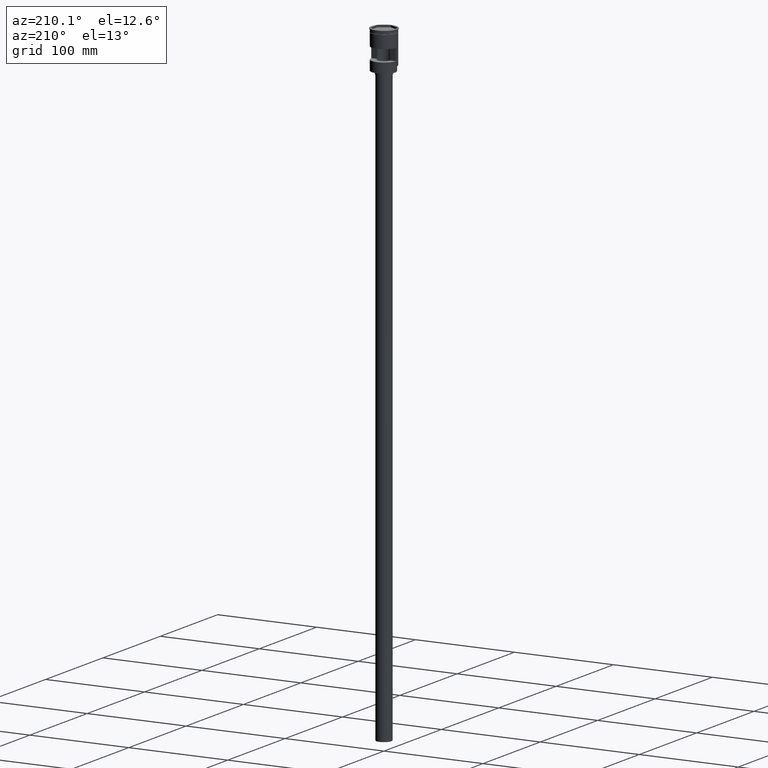
[diagram: clean part render]
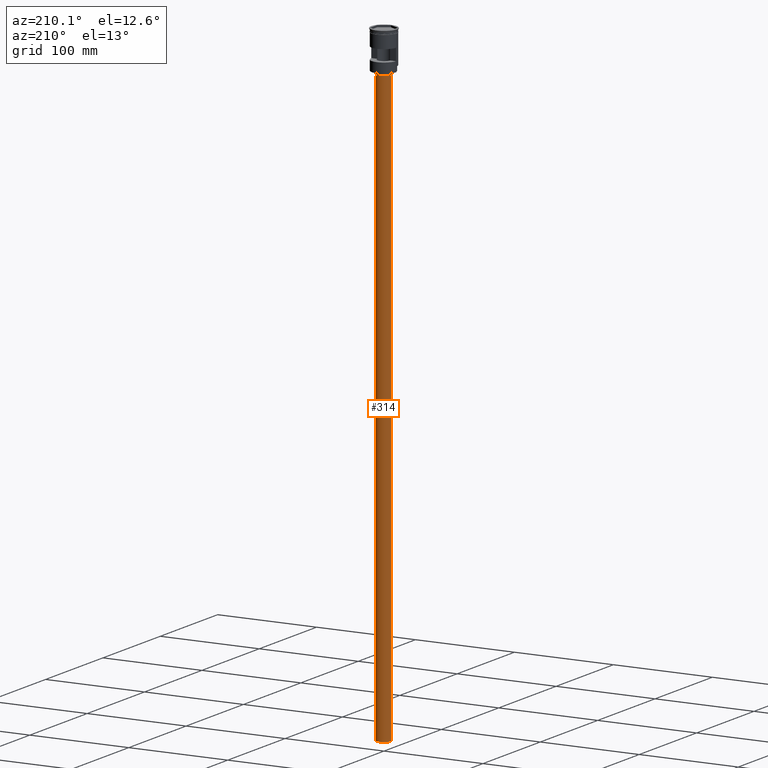
[diagram: same view with one face highlighted and labeled with its STEP entity id]
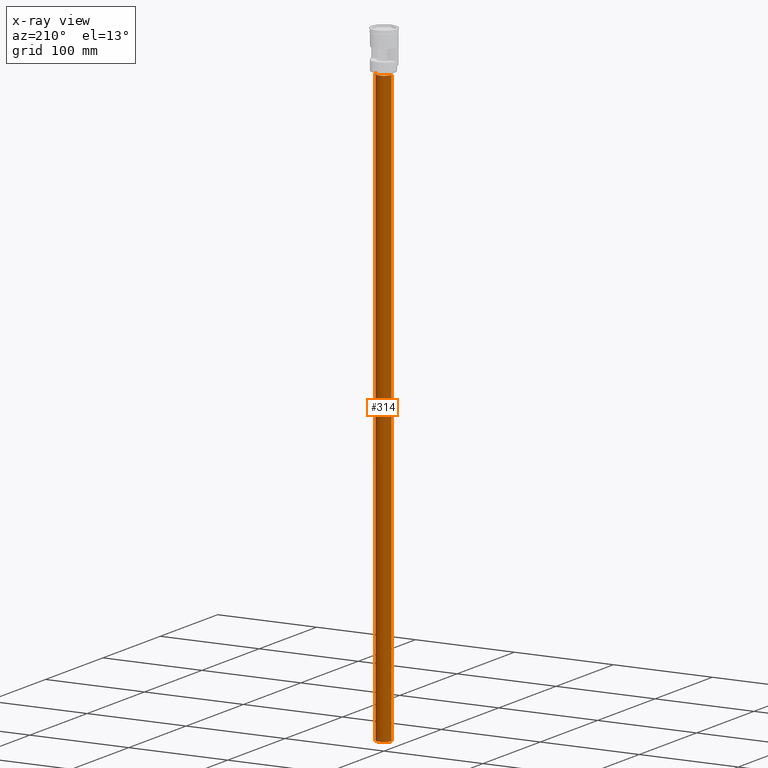
[diagram: x-ray of the same camera — body ghosted, the highlighted face saturated]
A machine part, auxiliary view. The second image highlights one B-rep face of the part: STEP entity #314.
The next image is the same camera in x-ray: the body ghosted, the highlighted face saturated — about 0% of this face is hidden behind the body in this view.
In plain terms, the highlighted cylindrical surface (edge-blend (fillet) strip) has radius 7.5 mm, axis along (-0, -0, 1).
Its self-contained STEP definition (entity closure, byte-faithful):
#61 = AXIS2_PLACEMENT_3D ( 'NONE', #573, #335, #841 ) ;
#98 = DIRECTION ( 'NONE',  ( -1.000000000000000000, 0.000000000000000000, 0.000000000000000000 ) ) ;
#118 = LINE ( 'NONE', #1599, #1094 ) ;
#146 = EDGE_CURVE ( 'NONE', #1159, #873, #118, .T. ) ;
#214 = CARTESIAN_POINT ( 'NONE',  ( 7.500000000000000000, 0.000000000000000000, -638.5000000000000000 ) ) ;
#243 = CARTESIAN_POINT ( 'NONE',  ( -7.500000000000000000, 9.184850993605147944E-16, -638.5000000000000000 ) ) ;
#310 = ORIENTED_EDGE ( 'NONE', *, *, #762, .F. ) ;
#314 = ADVANCED_FACE ( 'NONE', ( #1328 ), #479, .T. ) ;
#326 = VERTEX_POINT ( 'NONE', #361 ) ;
#333 = VERTEX_POINT ( 'NONE', #243 ) ;
#335 = DIRECTION ( 'NONE',  ( -0.000000000000000000, -0.000000000000000000, 1.000000000000000000 ) ) ;
#360 = LINE ( 'NONE', #610, #448 ) ;
#361 = CARTESIAN_POINT ( 'NONE',  ( -7.500000000000000000, 9.184850993605147944E-16, -41.50000000000000000 ) ) ;
#365 = ORIENTED_EDGE ( 'NONE', *, *, #1025, .T. ) ;
#391 = ORIENTED_EDGE ( 'NONE', *, *, #1000, .T. ) ;
#393 = CARTESIAN_POINT ( 'NONE',  ( 0.000000000000000000, 0.000000000000000000, -41.50000000000000000 ) ) ;
#448 = VECTOR ( 'NONE', #1111, 1000.000000000000000 ) ;
#479 = CYLINDRICAL_SURFACE ( 'NONE', #61, 7.500000000000000000 ) ;
#498 = DIRECTION ( 'NONE',  ( -1.000000000000000000, 0.000000000000000000, 0.000000000000000000 ) ) ;
#573 = CARTESIAN_POINT ( 'NONE',  ( 0.000000000000000000, 0.000000000000000000, -638.5000000000000000 ) ) ;
#610 = CARTESIAN_POINT ( 'NONE',  ( -7.500000000000000000, 9.184850993605147944E-16, -638.5000000000000000 ) ) ;
#639 = DIRECTION ( 'NONE',  ( 0.000000000000000000, 0.000000000000000000, -1.000000000000000000 ) ) ;
#676 = AXIS2_PLACEMENT_3D ( 'NONE', #393, #639, #498 ) ;
#705 = CARTESIAN_POINT ( 'NONE',  ( 0.000000000000000000, 0.000000000000000000, -638.5000000000000000 ) ) ;
#762 = EDGE_CURVE ( 'NONE', #333, #1159, #1125, .T. ) ;
#841 = DIRECTION ( 'NONE',  ( 1.000000000000000000, 0.000000000000000000, 0.000000000000000000 ) ) ;
#873 = VERTEX_POINT ( 'NONE', #1314 ) ;
#894 = EDGE_LOOP ( 'NONE', ( #310, #365, #391, #1186 ) ) ;
#987 = AXIS2_PLACEMENT_3D ( 'NONE', #705, #1206, #98 ) ;
#1000 = EDGE_CURVE ( 'NONE', #326, #873, #1307, .T. ) ;
#1025 = EDGE_CURVE ( 'NONE', #333, #326, #360, .T. ) ;
#1094 = VECTOR ( 'NONE', #1376, 1000.000000000000000 ) ;
#1111 = DIRECTION ( 'NONE',  ( -0.000000000000000000, -0.000000000000000000, 1.000000000000000000 ) ) ;
#1125 = CIRCLE ( 'NONE', #987, 7.500000000000000000 ) ;
#1159 = VERTEX_POINT ( 'NONE', #214 ) ;
#1186 = ORIENTED_EDGE ( 'NONE', *, *, #146, .F. ) ;
#1206 = DIRECTION ( 'NONE',  ( 0.000000000000000000, 0.000000000000000000, -1.000000000000000000 ) ) ;
#1307 = CIRCLE ( 'NONE', #676, 7.500000000000000000 ) ;
#1314 = CARTESIAN_POINT ( 'NONE',  ( 7.500000000000000000, 0.000000000000000000, -41.50000000000000000 ) ) ;
#1328 = FACE_OUTER_BOUND ( 'NONE', #894, .T. ) ;
#1376 = DIRECTION ( 'NONE',  ( -0.000000000000000000, -0.000000000000000000, 1.000000000000000000 ) ) ;
#1599 = CARTESIAN_POINT ( 'NONE',  ( 7.500000000000000000, 0.000000000000000000, -638.5000000000000000 ) ) ;